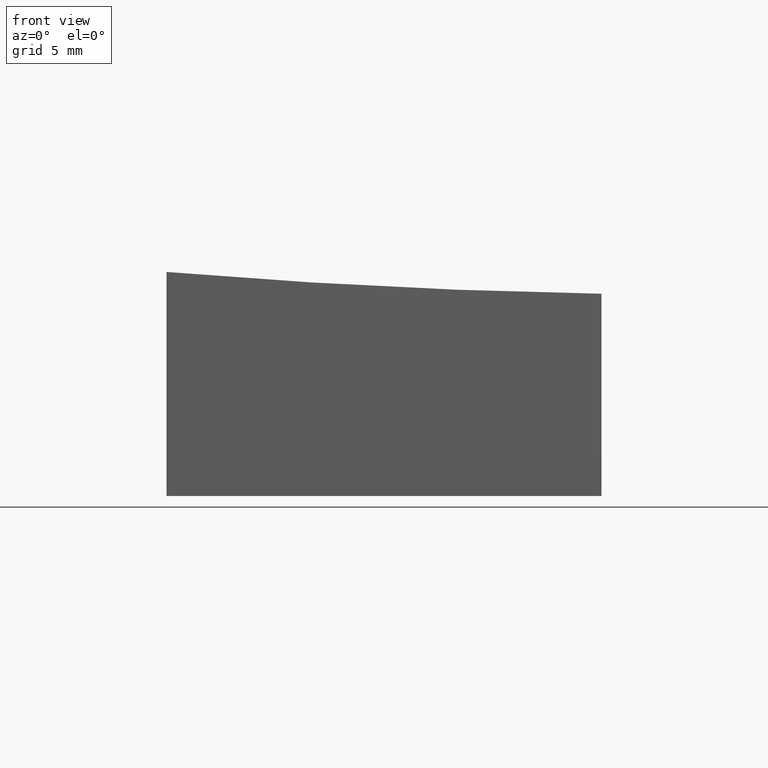
[diagram: clean part render]
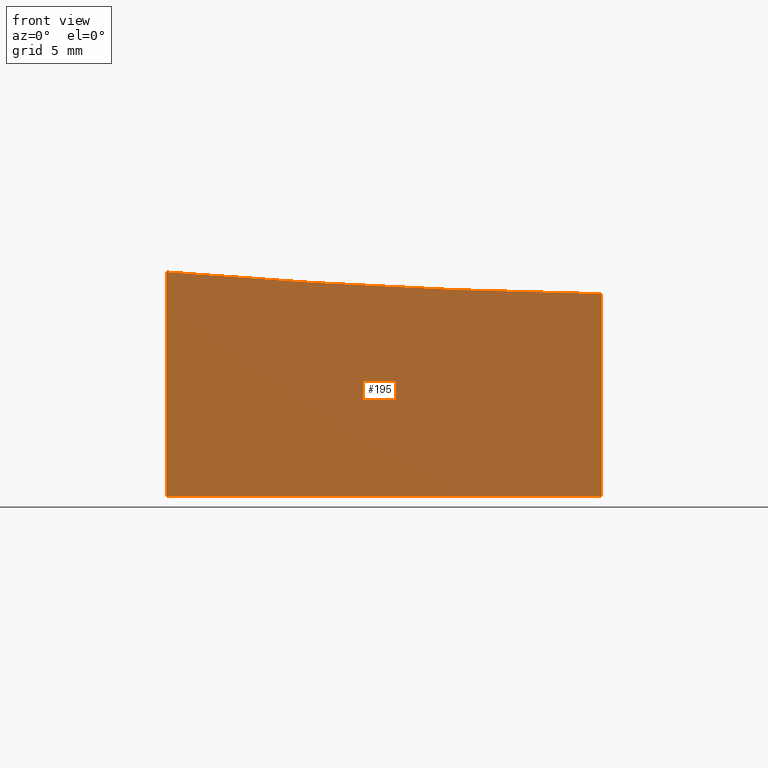
[diagram: same view with one face highlighted and labeled with its STEP entity id]
A machine part, front view. The second image highlights one B-rep face of the part: STEP entity #195.
In plain terms, the highlighted planar face has unit normal (-0, 1, 0).
Its self-contained STEP definition (entity closure, byte-faithful):
#2 = ORIENTED_EDGE ( 'NONE', *, *, #87, .T. ) ;
#5 = CARTESIAN_POINT ( 'NONE',  ( 15.00000000000004086, -12.49999999999999822, 299.0000000000000000 ) ) ;
#16 = ORIENTED_EDGE ( 'NONE', *, *, #39, .F. ) ;
#19 = VECTOR ( 'NONE', #101, 1000.000000000000000 ) ;
#22 = CARTESIAN_POINT ( 'NONE',  ( -9.999999999999998224, -12.50000000000000355, -10.00000000000000000 ) ) ;
#25 = FACE_OUTER_BOUND ( 'NONE', #232, .T. ) ;
#27 = CARTESIAN_POINT ( 'NONE',  ( 10.00000000000000178, -12.50000000000000000, -10.00000000000000000 ) ) ;
#39 = EDGE_CURVE ( 'NONE', #247, #128, #130, .T. ) ;
#41 = CARTESIAN_POINT ( 'NONE',  ( -9.999999999999998224, -12.50000000000000355, 10.00000000000000000 ) ) ;
#44 = VECTOR ( 'NONE', #264, 1000.000000000000000 ) ;
#48 = LINE ( 'NONE', #27, #19 ) ;
#52 = DIRECTION ( 'NONE',  ( -1.734723475976807094E-16, 1.000000000000000000, 0.000000000000000000 ) ) ;
#63 = CARTESIAN_POINT ( 'NONE',  ( 10.00000000000000178, -12.50000000000000000, 10.00000000000000000 ) ) ;
#82 = VERTEX_POINT ( 'NONE', #182 ) ;
#87 = EDGE_CURVE ( 'NONE', #82, #136, #134, .T. ) ;
#89 = DIRECTION ( 'NONE',  ( -0.000000000000000000, -0.000000000000000000, -1.000000000000000000 ) ) ;
#91 = CARTESIAN_POINT ( 'NONE',  ( 10.00000000000000178, -12.50000000000000000, -0.6977644227598167603 ) ) ;
#101 = DIRECTION ( 'NONE',  ( 1.000000000000000000, 1.734723475976807094E-16, -0.000000000000000000 ) ) ;
#126 = ORIENTED_EDGE ( 'NONE', *, *, #176, .T. ) ;
#127 = CIRCLE ( 'NONE', #233, 299.7394702070449171 ) ;
#128 = VERTEX_POINT ( 'NONE', #221 ) ;
#130 = LINE ( 'NONE', #63, #234 ) ;
#134 = LINE ( 'NONE', #41, #44 ) ;
#136 = VERTEX_POINT ( 'NONE', #22 ) ;
#145 = ORIENTED_EDGE ( 'NONE', *, *, #219, .T. ) ;
#164 = CARTESIAN_POINT ( 'NONE',  ( 10.00000000000000178, -12.50000000000000000, 10.00000000000000000 ) ) ;
#176 = EDGE_CURVE ( 'NONE', #136, #128, #48, .T. ) ;
#182 = CARTESIAN_POINT ( 'NONE',  ( -9.999999999999998224, -12.50000000000000355, 0.3049213662870142727 ) ) ;
#195 = ADVANCED_FACE ( 'NONE', ( #25 ), #251, .F. ) ;
#201 = DIRECTION ( 'NONE',  ( -1.000000000000000000, -1.734723475976807094E-16, 0.000000000000000000 ) ) ;
#205 = DIRECTION ( 'NONE',  ( -1.734723475976807094E-16, 1.000000000000000000, 0.000000000000000000 ) ) ;
#210 = AXIS2_PLACEMENT_3D ( 'NONE', #164, #52, #201 ) ;
#219 = EDGE_CURVE ( 'NONE', #247, #82, #127, .T. ) ;
#221 = CARTESIAN_POINT ( 'NONE',  ( 10.00000000000000178, -12.50000000000000000, -10.00000000000000000 ) ) ;
#232 = EDGE_LOOP ( 'NONE', ( #16, #145, #2, #126 ) ) ;
#233 = AXIS2_PLACEMENT_3D ( 'NONE', #5, #205, #241 ) ;
#234 = VECTOR ( 'NONE', #89, 1000.000000000000000 ) ;
#241 = DIRECTION ( 'NONE',  ( -1.000000000000000000, -1.736231275892908730E-16, 0.000000000000000000 ) ) ;
#247 = VERTEX_POINT ( 'NONE', #91 ) ;
#251 = PLANE ( 'NONE',  #210 ) ;
#264 = DIRECTION ( 'NONE',  ( -0.000000000000000000, -0.000000000000000000, -1.000000000000000000 ) ) ;